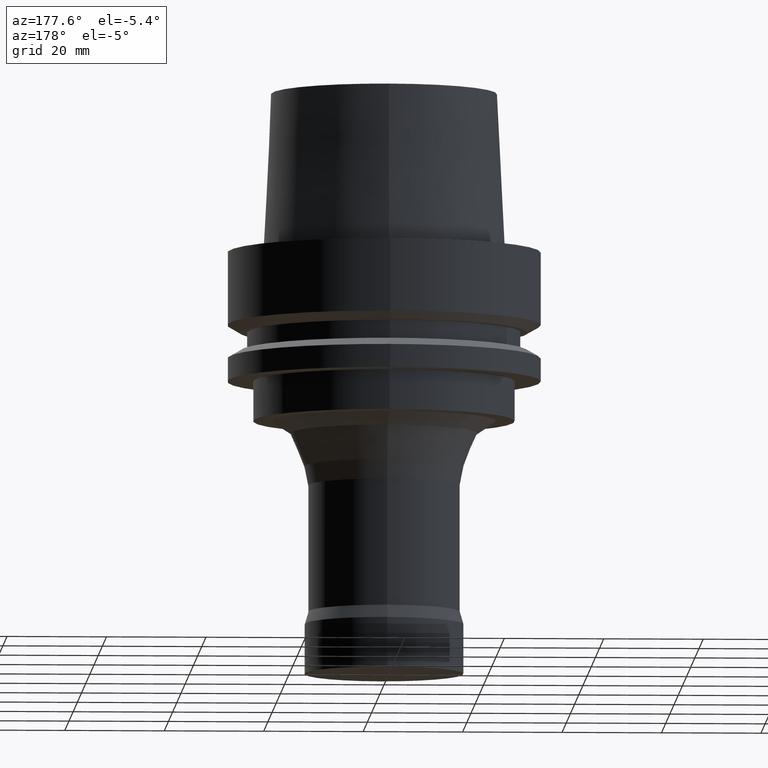
[diagram: clean part render]
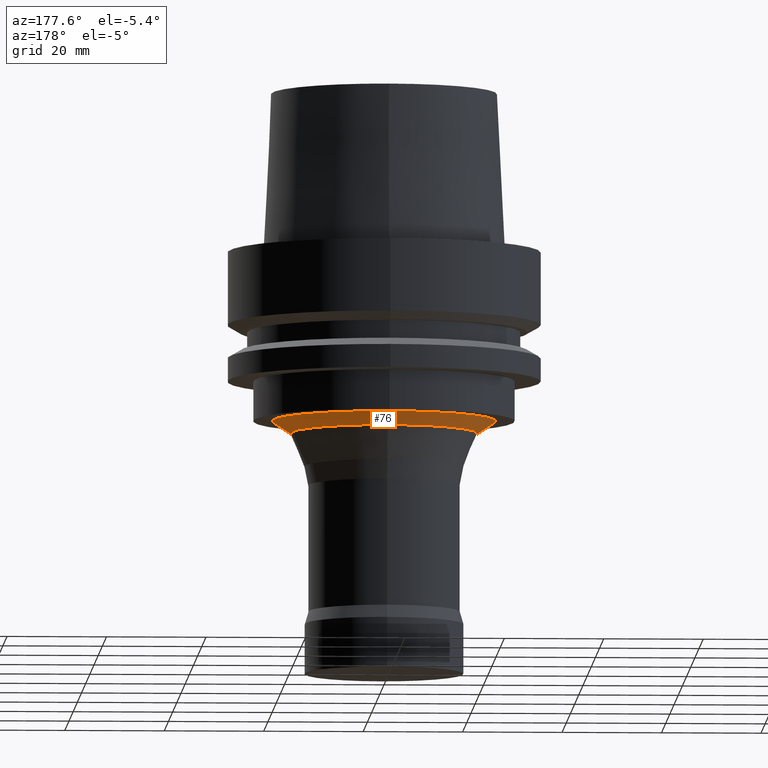
[diagram: same view with one face highlighted and labeled with its STEP entity id]
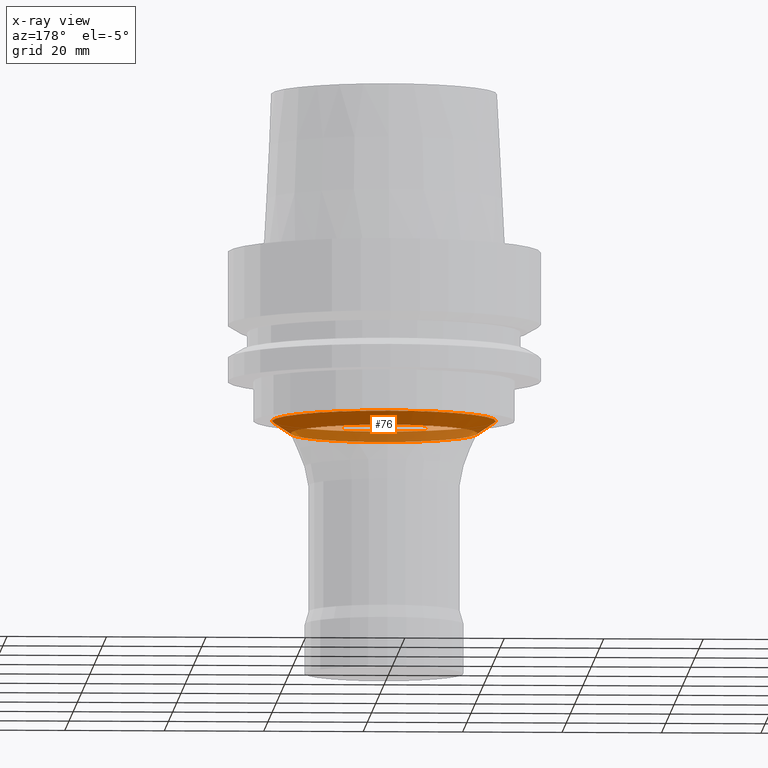
[diagram: x-ray of the same camera — body ghosted, the highlighted face saturated]
A machine part, auxiliary view. The second image highlights one B-rep face of the part: STEP entity #76.
The next image is the same camera in x-ray: the body ghosted, the highlighted face saturated — about 36% of this face is hidden behind the body in this view.
In plain terms, the highlighted conical surface has half-angle 56.31 deg.
Its self-contained STEP definition (entity closure, byte-faithful):
#76=ADVANCED_FACE('',(#99,#100),#101,.T.);
#99=FACE_BOUND('',#157,.T.);
#100=FACE_BOUND('',#158,.T.);
#101=CONICAL_SURFACE('',#159,20.6538455690514,0.982793569847585);
#157=EDGE_LOOP('',(#217));
#158=EDGE_LOOP('',(#218));
#159=AXIS2_PLACEMENT_3D('',#219,#220,#221);
#217=ORIENTED_EDGE('',*,*,#312,.F.);
#218=ORIENTED_EDGE('',*,*,#310,.T.);
#219=CARTESIAN_POINT('',(2.15726243731662E-015,4.31452487463323E-015,-35.2307692114753));
#220=DIRECTION('',(-6.12323399573677E-017,-1.22464679914735E-016,1.0));
#221=DIRECTION('',(-1.23259516440783E-032,1.0,1.22464679914735E-016));
#310=EDGE_CURVE('',#329,#329,#330,.T.);
#312=EDGE_CURVE('',#333,#333,#334,.T.);
#329=VERTEX_POINT('',#367);
#330=CIRCLE('',#368,22.4999987726655);
#333=VERTEX_POINT('',#371);
#334=CIRCLE('',#372,18.8076923654372);
#367=CARTESIAN_POINT('',(2.0818995585505E-015,22.4999987726655,-34.0));
#368=AXIS2_PLACEMENT_3D('',#405,#406,#407);
#371=CARTESIAN_POINT('',(2.23262531608274E-015,18.8076923654372,-36.4615384229506));
#372=AXIS2_PLACEMENT_3D('',#411,#412,#413);
#405=CARTESIAN_POINT('',(2.0818995585505E-015,4.163799117101E-015,-34.0));
#406=DIRECTION('',(6.12323399573677E-017,1.22464679914735E-016,-1.0));
#407=DIRECTION('',(-1.23259516440783E-032,1.0,1.22464679914735E-016));
#411=CARTESIAN_POINT('',(2.23262531608274E-015,4.46525063216547E-015,-36.4615384229506));
#412=DIRECTION('',(6.12323399573677E-017,1.22464679914735E-016,-1.0));
#413=DIRECTION('',(-1.23259516440783E-032,1.0,1.22464679914735E-016));